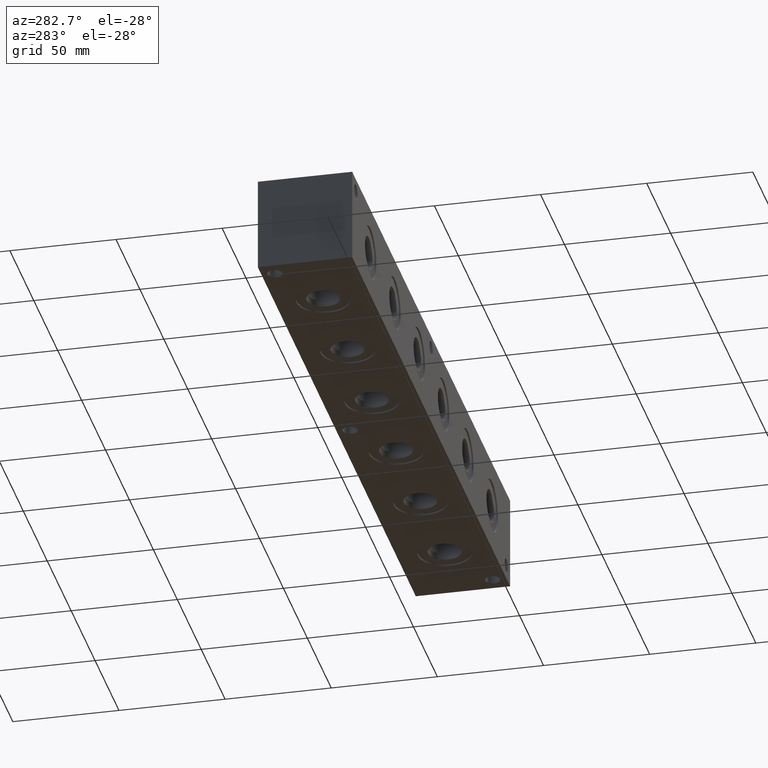
[diagram: clean part render]
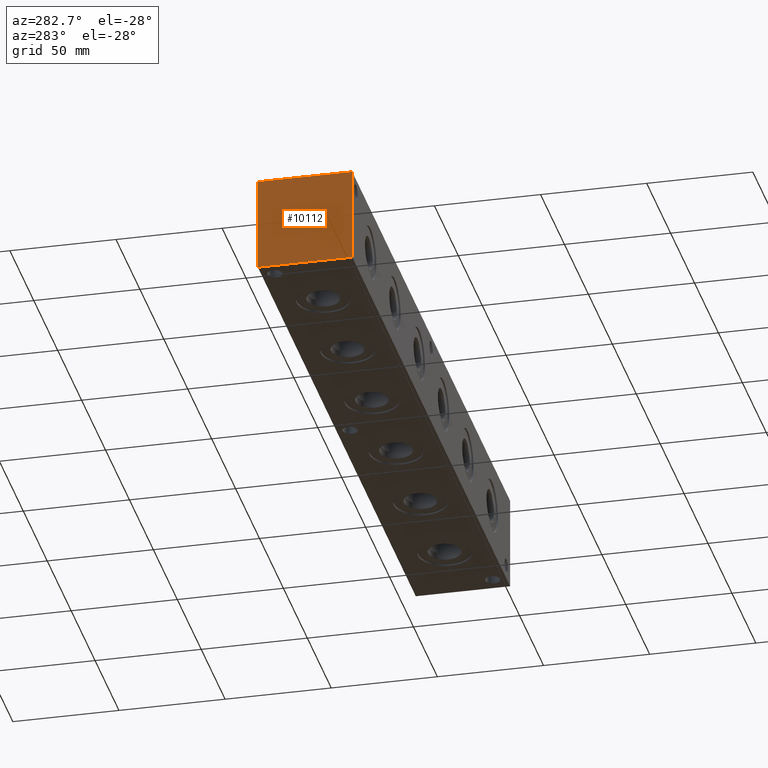
[diagram: same view with one face highlighted and labeled with its STEP entity id]
A machine part, auxiliary view. The second image highlights one B-rep face of the part: STEP entity #10112.
In plain terms, the highlighted planar face has unit normal (-1, 0, 0).
Its self-contained STEP definition (entity closure, byte-faithful):
#1625=FACE_OUTER_BOUND('',#2235,.T.);
#2235=EDGE_LOOP('',(#8980,#8981,#8982,#8983));
#2509=LINE('',#15728,#3262);
#3007=LINE('',#18010,#3760);
#3008=LINE('',#18011,#3761);
#3009=LINE('',#18012,#3762);
#3262=VECTOR('',#11339,10.);
#3760=VECTOR('',#13401,10.);
#3761=VECTOR('',#13402,10.);
#3762=VECTOR('',#13403,10.);
#4072=VERTEX_POINT('',#15721);
#4075=VERTEX_POINT('',#15726);
#4718=VERTEX_POINT('',#18008);
#4719=VERTEX_POINT('',#18009);
#5181=EDGE_CURVE('',#4075,#4072,#2509,.T.);
#6153=EDGE_CURVE('',#4718,#4719,#3007,.T.);
#6154=EDGE_CURVE('',#4719,#4072,#3008,.T.);
#6155=EDGE_CURVE('',#4718,#4075,#3009,.T.);
#8980=ORIENTED_EDGE('',*,*,#6153,.T.);
#8981=ORIENTED_EDGE('',*,*,#6154,.T.);
#8982=ORIENTED_EDGE('',*,*,#5181,.F.);
#8983=ORIENTED_EDGE('',*,*,#6155,.F.);
#9271=PLANE('',#10970);
#10112=ADVANCED_FACE('',(#1625),#9271,.T.);
#10970=AXIS2_PLACEMENT_3D('',#18007,#13399,#13400);
#11339=DIRECTION('',(0.,-1.,0.));
#13399=DIRECTION('center_axis',(-1.,0.,0.));
#13400=DIRECTION('ref_axis',(0.,-1.,0.));
#13401=DIRECTION('',(0.,-1.,0.));
#13402=DIRECTION('',(0.,0.,1.));
#13403=DIRECTION('',(0.,0.,1.));
#15721=CARTESIAN_POINT('',(0.,0.,44.45));
#15726=CARTESIAN_POINT('',(0.,44.45,44.45));
#15728=CARTESIAN_POINT('',(0.,44.45,44.45));
#18007=CARTESIAN_POINT('Origin',(0.,44.45,0.));
#18008=CARTESIAN_POINT('',(0.,44.45,0.));
#18009=CARTESIAN_POINT('',(0.,0.,0.));
#18010=CARTESIAN_POINT('',(0.,44.45,0.));
#18011=CARTESIAN_POINT('',(0.,0.,0.));
#18012=CARTESIAN_POINT('',(0.,44.45,0.));